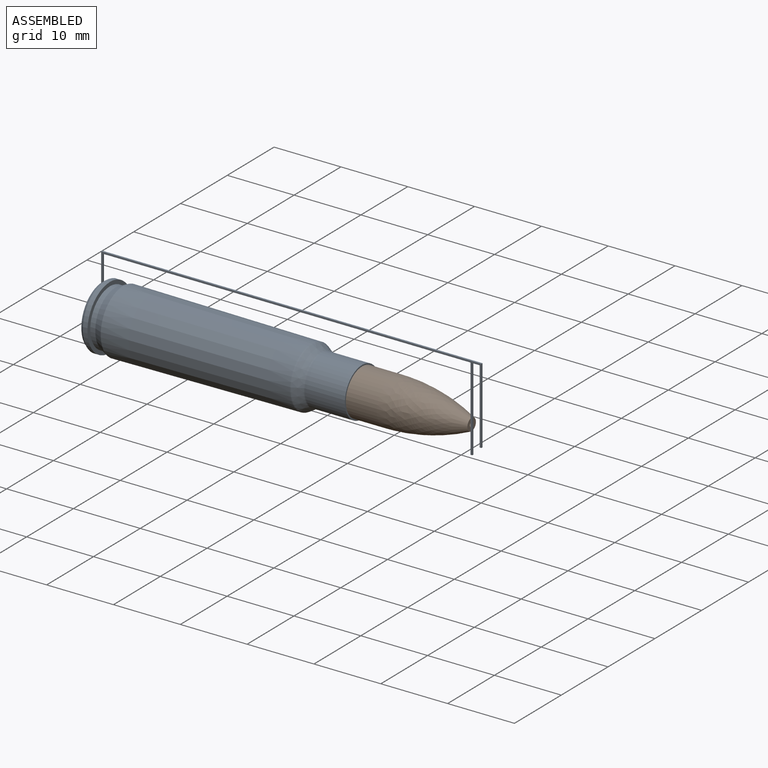
[diagram: assembled view]
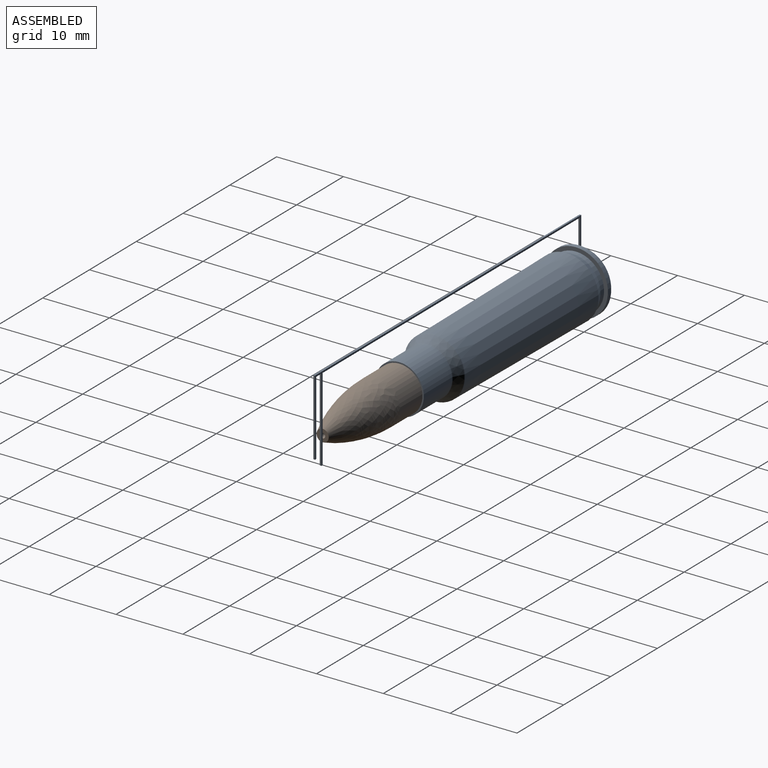
[diagram: assembled view, second angle]
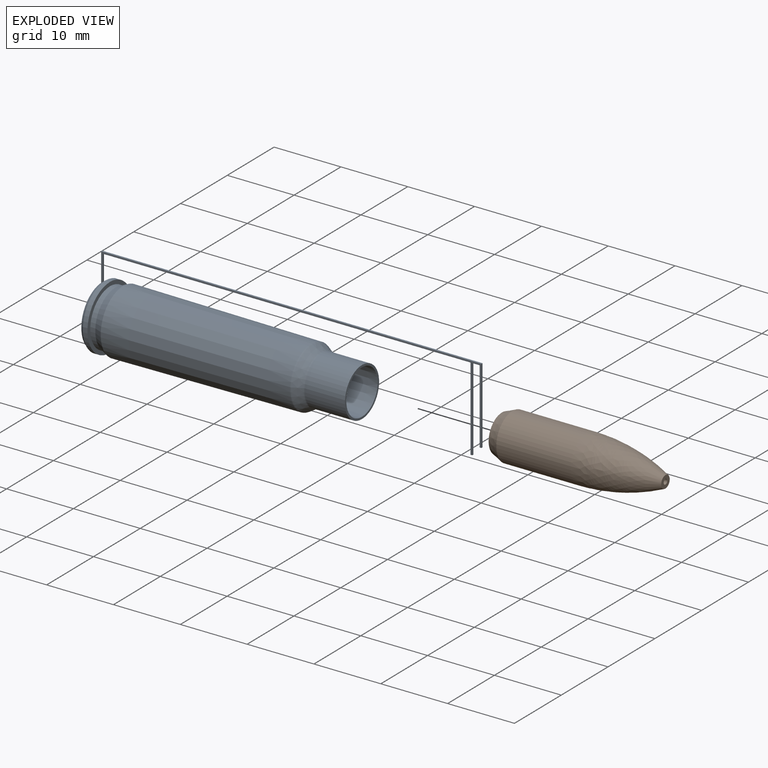
[diagram: exploded view]
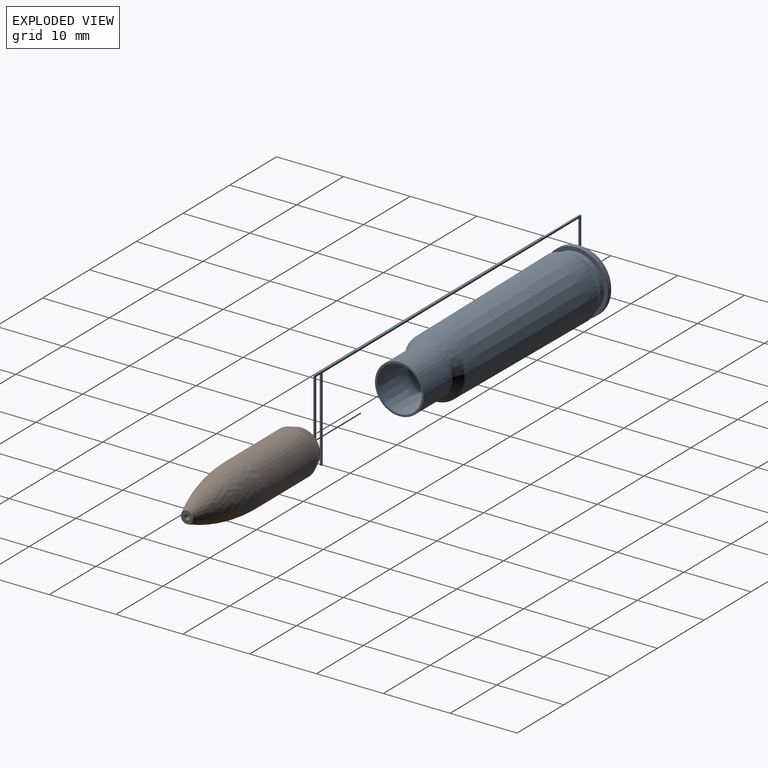
[diagram: exploded view, second angle]
ASSEMBLY  parts=2 mates=2
PART A: 36 faces, bbox 56.9x9.8x13.6 mm
  f0: plane 55.02x0.25mm, normal (0,0,-1), area 14mm2, adj f2,f3,f16,f33
  f1: plane 7.95x7.95mm, normal (1,0,0), area 44.6mm2, adj f6,f25
  f2: plane 56.9x12.73mm, normal (0,-1,0), area 21.4mm2, adj f0,f4,f5,f12,f13,f16,f30,f31
  f3: plane 56.9x12.73mm, normal (0,1,0), area 21.4mm2, adj f0,f4,f5,f12,f13,f16,f30,f31
  f4: plane 56.9x0.25mm, normal (0,0,1), area 14.5mm2, adj f2,f3,f13,f32
  f5: plane 1.12x0.25mm, normal (0,0,-1), area 0.3mm2, adj f2,f3,f30,f35
  f6: cylinder r=1.27mm len=2.54mm, axis (1,0,0), area 5.1mm2, adj f1,f15
  f7: cone r=4.77mm half-angle=0.5deg, axis (-1,0,0), area 21.3mm2, adj f8,f24
  f8: cone r=4.22mm half-angle=25deg, axis (1,0,0), area 37.3mm2, adj f7,f9
  f9: cylinder r=4.22mm len=8.43mm, axis (1,0,0), area 20.2mm2, adj f8,f10
  f10: plane 9.6x9.6mm, normal (1,0,0), area 16.5mm2, adj f9,f11
  f11: cylinder r=4.8mm len=9.6mm, axis (1,0,0), area 20.7mm2, adj f10,f12
  f12: cone r=4.48mm half-angle=35deg, axis (1,0,0), area 16.2mm2, adj f2,f3,f11,f13,f16
  f13: plane 13.2x8.96mm, normal (-1,0,0), area 48.6mm2, adj f2,f3,f4,f12,f14
  f14: cylinder r=2.22mm len=4.45mm, axis (1,0,0), area 44.3mm2, adj f13,f15
  f15: plane 4.45x4.45mm, normal (-1,0,0), area 10.5mm2, adj f6,f14
  f16: plane 3.82x0.25mm, normal (1,0,0), area 1mm2, adj f0,f2,f3,f12
  f17: cone r=3.4mm half-angle=0.5deg, axis (-1,0,0), area 127.2mm2, adj f18,f29
  f18: plane 7.32x7.32mm, normal (1,0,0), area 6.8mm2, adj f17,f19
  f19: cylinder r=3.66mm len=7.32mm, axis (-1,0,0), area 137.8mm2, adj f18,f20
  f20: torus R=4.04mm, axis (-1,0,0), area 4.9mm2, adj f19,f21
  f21: cone r=4.47mm half-angle=31.6deg, axis (-1,0,0), area 36.9mm2, adj f20,f22
  f22: torus R=4.14mm, axis (-1,0,0), area 5.8mm2, adj f21,f23
  f23: cone r=4.77mm half-angle=0.5deg, axis (-1,0,0), area 800.9mm2, adj f22,f24
  f24: plane 9.54x9.54mm, normal (-1,0,0), area 0mm2, adj f7,f23
  f25: torus R=3.97mm, axis (-1,0,0), area 22.9mm2, adj f1,f26
  f26: cone r=4.51mm half-angle=0.5deg, axis (-1,0,0), area 741.8mm2, adj f25,f27
  f27: torus R=3.89mm, axis (-1,0,0), area 5.5mm2, adj f26,f28
  f28: cone r=4.21mm half-angle=31.6deg, axis (-1,0,0), area 34.6mm2, adj f27,f29
  f29: torus R=3.78mm, axis (-1,0,0), area 4.4mm2, adj f17,f28
  f30: plane 11.12x0.25mm, normal (-1,0,0), area 2.8mm2, adj f2,f3,f5,f31
  f31: plane 0.25x0.25mm, normal (0,0,-1), area 0.1mm2, adj f2,f3,f30,f32
  f32: plane 11.38x0.25mm, normal (1,0,0), area 2.9mm2, adj f2,f3,f4,f31
  f33: plane 12.48x0.25mm, normal (-1,0,0), area 3.2mm2, adj f0,f2,f3,f34
  f34: plane 0.25x0.25mm, normal (0,0,-1), area 0.1mm2, adj f2,f3,f33,f35
  f35: plane 12.48x0.25mm, normal (1,0,0), area 3.2mm2, adj f2,f3,f5,f34
PART B: 6 faces, bbox 24.5x6.9x6.9 mm
  f0: cone r=2.82mm half-angle=21.8deg, axis (1,0,0), area 33.7mm2, adj f1,f5
  f1: plane 5.64x5.64mm, normal (-1,0,0), area 25mm2, adj f0
  f2: cone r=0.38mm half-angle=6.8deg, axis (1,0,0), area 3.8mm2, adj f3
  f3: plane 1.83x1.83mm, normal (1,0,0), area 2.2mm2, adj f2,f4
  f4: revolved ~11.79x6.91mm, area 198.6mm2, adj f3,f5
  f5: cylinder r=3.45mm len=11.11mm, axis (-1,0,0), area 241.2mm2, adj f0,f4
PLACE A t=(-32.29,-2,-3.47)mm fixed
PLACE B rot(axis=(1,0,0),180deg) t=(-1.5,-2,-3.47)mm
MATE planar B.f0 <-> A.f33  axis (1,0,0) through (22.99,-2,-3.47)mm
MATE cylindrical B.f0 <-> A.f17  axis (-1,0,0) through (5.64,-2,-3.47)mm
